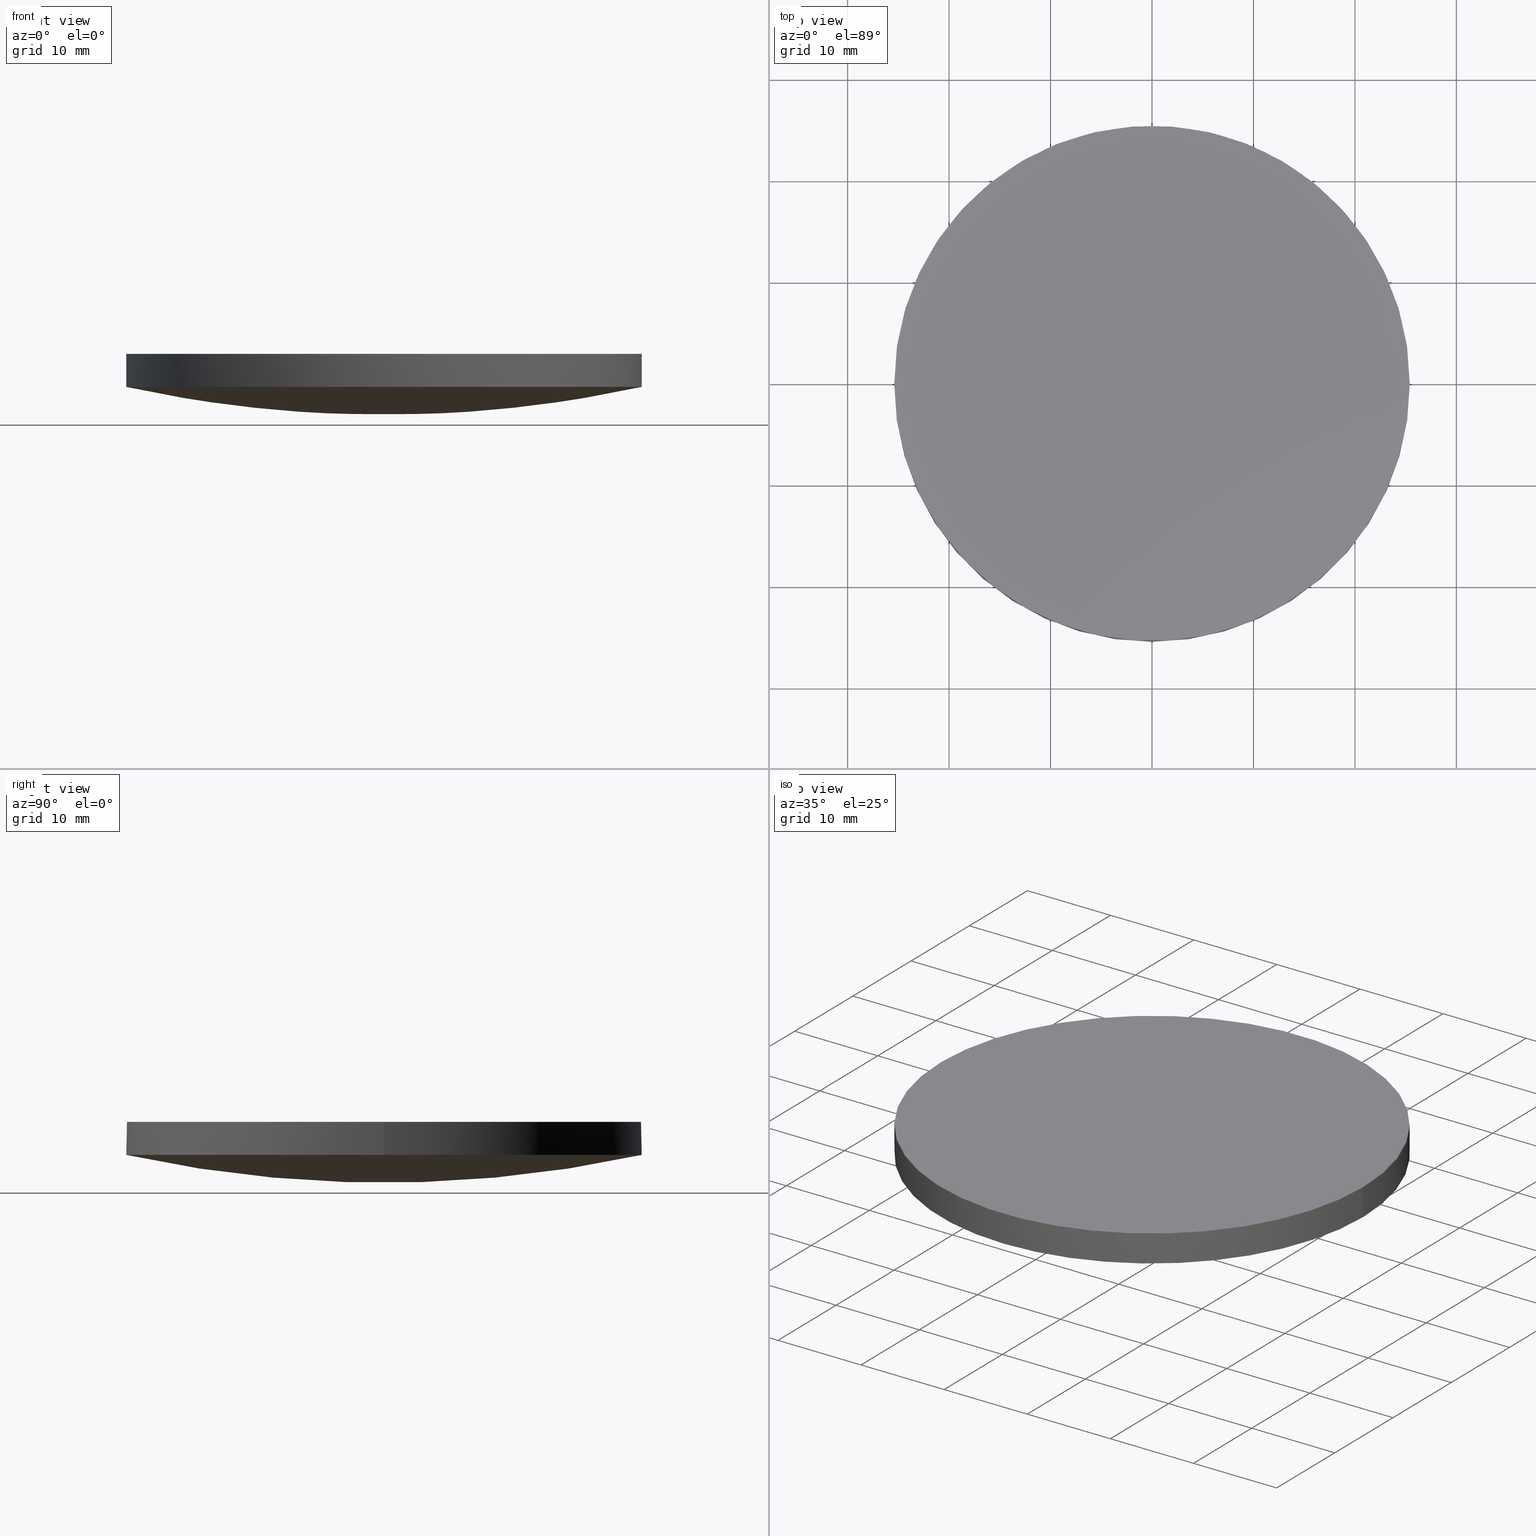
[diagram: canonical four-view strip — front | top / right | iso, engineering-drawing reading convention]
A machine part, canonical four-view strip (front | top / right | iso — engineering-drawing reading convention). The complete STEP part file that produces these views, byte-faithful:
ISO-10303-21;
HEADER;
FILE_DESCRIPTION (( 'STEP AP203' ),
    '1' );
FILE_NAME ('110-1517E UVFS pl-cx 50.8 F250.STEP',
    '2018-12-13T15:10:18',
    ( '' ),
    ( '' ),
    'SwSTEP 2.0',
    'SolidWorks 2017',
    '' );
FILE_SCHEMA (( 'CONFIG_CONTROL_DESIGN' ));
ENDSEC;

DATA;
#1 = EDGE_CURVE ( 'NONE', #216, #8, #36, .T. ) ;
#2 = CYLINDRICAL_SURFACE ( 'NONE', #87, 25.39999999999999900 ) ;
#3 = CARTESIAN_POINT ( 'NONE',  ( 9.992007221626412800E-016, 4.884981308350691100E-015, 2.742355090084500200 ) ) ;
#4 = AXIS2_PLACEMENT_3D ( 'NONE', #61, #170, #99 ) ;
#5 = CIRCLE ( 'NONE', #54, 25.39999999999999900 ) ;
#6 = DIRECTION ( 'NONE',  ( 0.0000000000000000000, 0.0000000000000000000, 1.000000000000000000 ) ) ;
#7 = APPROVAL_DATE_TIME ( #139, #172 ) ;
#8 = VERTEX_POINT ( 'NONE', #196 ) ;
#9 = CARTESIAN_POINT ( 'NONE',  ( -16.74556419753230300, -25.69999964640433300, 3.715086385571858800 ) ) ;
#10 = EDGE_CURVE ( 'NONE', #226, #216, #136, .T. ) ;
#11 = CARTESIAN_POINT ( 'NONE',  ( 25.75422041972872500, 8.703598526910687000, 1.846348701694524100 ) ) ;
#12 = CC_DESIGN_PERSON_AND_ORGANIZATION_ASSIGNMENT ( #204, #166, ( #199 ) ) ;
#13 = ORIENTED_EDGE ( 'NONE', *, *, #180, .F. ) ;
#14 = CC_DESIGN_APPROVAL ( #205, ( #23 ) ) ;
#15 = MECHANICAL_CONTEXT ( 'NONE', #93, 'mechanical' ) ;
#16 = DIRECTION ( 'NONE',  ( -0.0000000000000000000, -0.0000000000000000000, -1.000000000000000000 ) ) ;
#17 = DATE_AND_TIME ( #62, #116 ) ;
#18 = EDGE_CURVE ( 'NONE', #234, #57, #101, .T. ) ;
#19 = EDGE_LOOP ( 'NONE', ( #55, #97, #45 ) ) ;
#20 = APPROVAL_STATUS ( 'not_yet_approved' ) ;
#21 = ORIENTED_EDGE ( 'NONE', *, *, #220, .F. ) ;
#22 = PERSON_AND_ORGANIZATION ( #37, #83 ) ;
#23 = SECURITY_CLASSIFICATION ( '', '', #78 ) ;
#24 = DIRECTION ( 'NONE',  ( 1.000000000000000000, 0.0000000000000000000, 0.0000000000000000000 ) ) ;
#25 = DIRECTION ( 'NONE',  ( 1.000000000000000000, 0.0000000000000000000, -0.0000000000000000000 ) ) ;
#26 = PERSON_AND_ORGANIZATION ( #37, #83 ) ;
#27 = SHAPE_DEFINITION_REPRESENTATION ( #217, #143 ) ;
#28 = EDGE_CURVE ( 'NONE', #8, #216, #230, .T. ) ;
#29 = CARTESIAN_POINT ( 'NONE',  ( 24.94706102982440800, 25.69999964640436100, 5.518044764160708700 ) ) ;
#30 = CARTESIAN_POINT ( 'NONE',  ( 2.625693991564199000E-014, -8.703598526910649700, -0.9510645303030325100 ) ) ;
#31 = CC_DESIGN_PERSON_AND_ORGANIZATION_ASSIGNMENT ( #96, #113, ( #199 ) ) ;
#32 = CARTESIAN_POINT ( 'NONE',  ( 25.39999999999999900, 4.884981308350691100E-015, 2.742355090084500200 ) ) ;
#33 = CARTESIAN_POINT ( 'NONE',  ( 25.75422041972872800, -8.703598526910644400, 1.846348701694522600 ) ) ;
#34 = CARTESIAN_POINT ( 'NONE',  ( -25.39999999999999900, 7.995584178184967200E-015, 2.742355090084500200 ) ) ;
#35 = AXIS2_PLACEMENT_3D ( 'NONE', #185, #219, #100 ) ;
#36 = CIRCLE ( 'NONE', #4, 25.39999999999999900 ) ;
#37 = PERSON ( 'UNSPECIFIED', 'UNSPECIFIED', 'UNSPECIFIED', ('UNSPECIFIED'), ('UNSPECIFIED'), ('UNSPECIFIED') ) ;
#38 = PRODUCT_RELATED_PRODUCT_CATEGORY ( 'detail', '', ( #191 ) ) ;
#39 = PERSON_AND_ORGANIZATION ( #37, #83 ) ;
#40 = FACE_OUTER_BOUND ( 'NONE', #198, .T. ) ;
#41 = CC_DESIGN_DATE_AND_TIME_ASSIGNMENT ( #17, #178, ( #23 ) ) ;
#42 = AXIS2_PLACEMENT_3D ( 'NONE', #3, #81, #24 ) ;
#43 = CARTESIAN_POINT ( 'NONE',  ( -25.39999999999999900, 7.995584178184967200E-015, 2.742355090084500200 ) ) ;
#44 = PERSON_AND_ORGANIZATION ( #37, #83 ) ;
#45 = ORIENTED_EDGE ( 'NONE', *, *, #220, .T. ) ;
#46 = DIRECTION ( 'NONE',  ( 1.000000000000000000, 0.0000000000000000000, 0.0000000000000000000 ) ) ;
#47 = CARTESIAN_POINT ( 'NONE',  ( 8.669028249741140600, 8.703598526910683500, -0.9510645303030316200 ) ) ;
#48 = CARTESIAN_POINT ( 'NONE',  ( 17.28736506798853200, 8.703598526910685300, -0.01494419506242674000 ) ) ;
#49 = CARTESIAN_POINT ( 'NONE',  ( 8.397333458010448800, 25.69999964640436100, 2.808304865731413800 ) ) ;
#50 =( NAMED_UNIT ( * ) PLANE_ANGLE_UNIT ( ) SI_UNIT ( $, .RADIAN. ) );
#51 = APPROVAL_PERSON_ORGANIZATION ( #22, #172, #132 ) ;
#52 = APPLICATION_PROTOCOL_DEFINITION ( 'international standard', 'config_control_design', 1994, #93 ) ;
#53 = ORIENTED_EDGE ( 'NONE', *, *, #10, .F. ) ;
#54 = AXIS2_PLACEMENT_3D ( 'NONE', #159, #162, #140 ) ;
#55 = ORIENTED_EDGE ( 'NONE', *, *, #18, .T. ) ;
#56 = APPROVAL_PERSON_ORGANIZATION ( #39, #232, #90 ) ;
#57 = VERTEX_POINT ( 'NONE', #197 ) ;
#58 = ORIENTED_EDGE ( 'NONE', *, *, #1, .T. ) ;
#59 = AXIS2_PLACEMENT_3D ( 'NONE', #203, #84, #102 ) ;
#60 = DIRECTION ( 'NONE',  ( 0.0000000000000000000, 0.0000000000000000000, 1.000000000000000000 ) ) ;
#61 = CARTESIAN_POINT ( 'NONE',  ( 9.992007221626412800E-016, 4.884981308350691100E-015, 6.000000000000000000 ) ) ;
#62 = CALENDAR_DATE ( 2018, 13, 12 ) ;
#63 = CLOSED_SHELL ( 'NONE', ( #164, #211, #212, #129, #94 ) ) ;
#64 = CARTESIAN_POINT ( 'NONE',  ( 1.799039049072755500E-014, 25.69999964640435800, 2.808304865731414700 ) ) ;
#65 = CARTESIAN_POINT ( 'NONE',  ( -17.28736506798856400, 8.703598526910676400, -0.01494419506241220900 ) ) ;
#66 = DESIGN_CONTEXT ( 'detailed design', #192, 'design' ) ;
#67 = CARTESIAN_POINT ( 'NONE',  ( 9.992007221626412800E-016, 4.884981308350691100E-015, 2.742355090084500200 ) ) ;
#68 = CALENDAR_DATE ( 2018, 13, 12 ) ;
#69 = CARTESIAN_POINT ( 'NONE',  ( 0.0000000000000000000, -8.703598526910653300, -0.9510645303030277300 ) ) ;
#70 = CARTESIAN_POINT ( 'NONE',  ( -1.040834085586084300E-014, 25.69999964640435400, 2.808304865731418200 ) ) ;
#71 = CARTESIAN_POINT ( 'NONE',  ( 25.39999999999999900, 4.884981308350691100E-015, 2.742355090084500200 ) ) ;
#72 = CALENDAR_DATE ( 2018, 13, 12 ) ;
#73 = CYLINDRICAL_SURFACE ( 'NONE', #175, 25.39999999999999900 ) ;
#74 = PERSON_AND_ORGANIZATION_ROLE ( 'design_owner' ) ;
#75 =( BOUNDED_SURFACE ( )  B_SPLINE_SURFACE ( 3, 3, ( 
 ( #104, #9, #221, #155 ),
 ( #121, #138, #174, #69 ),
 ( #173, #65, #202, #209 ),
 ( #207, #109, #177, #70 ) ),
 .UNSPECIFIED., .F., .F., .T. ) 
 B_SPLINE_SURFACE_WITH_KNOTS ( ( 4, 4 ),
 ( 4, 4 ),
 ( 0.0000000000000000000, 1.000000000000000000 ),
 ( 0.0000000000000000000, 1.000000000000000000 ),
 .UNSPECIFIED. ) 
 GEOMETRIC_REPRESENTATION_ITEM ( )  RATIONAL_B_SPLINE_SURFACE ( (
 ( 1.000000000000000000, 0.9961017213591967200, 0.9961017213591967200, 1.000000000000000000),
 ( 0.9842671996317566800, 0.9804302518305889600, 0.9804302518305889600, 0.9842671996317566800),
 ( 0.9842671996317566800, 0.9804302518305889600, 0.9804302518305889600, 0.9842671996317566800),
 ( 1.000000000000000000, 0.9961017213591967200, 0.9961017213591967200, 1.000000000000000000) ) ) 
 REPRESENTATION_ITEM ( '' )  SURFACE ( )  );
#76 = CC_DESIGN_DATE_AND_TIME_ASSIGNMENT ( #79, #144, ( #227 ) ) ;
#77 = PERSON_AND_ORGANIZATION_ROLE ( 'classification_officer' ) ;
#78 = SECURITY_CLASSIFICATION_LEVEL ( 'unclassified' ) ;
#79 = DATE_AND_TIME ( #72, #148 ) ;
#80 = EDGE_LOOP ( 'NONE', ( #131, #167 ) ) ;
#81 = DIRECTION ( 'NONE',  ( -0.0000000000000000000, -0.0000000000000000000, -1.000000000000000000 ) ) ;
#82 = CARTESIAN_POINT ( 'NONE',  ( 0.0000000000000000000, 52.02000000000000300, 6.000000000000000000 ) ) ;
#83 = ORGANIZATION ( 'UNSPECIFIED', 'UNSPECIFIED', '' ) ;
#84 = DIRECTION ( 'NONE',  ( -0.0000000000000000000, -0.0000000000000000000, -1.000000000000000000 ) ) ;
#85 = EDGE_LOOP ( 'NONE', ( #154, #128, #186 ) ) ;
#86 = ORIENTED_EDGE ( 'NONE', *, *, #231, .F. ) ;
#87 = AXIS2_PLACEMENT_3D ( 'NONE', #118, #151, #46 ) ;
#88 = DIRECTION ( 'NONE',  ( 1.000000000000000000, 0.0000000000000000000, 0.0000000000000000000 ) ) ;
#89 = CARTESIAN_POINT ( 'NONE',  ( 2.842170943040400100E-014, 2.131628207280299900E-014, 119.0000000000000100 ) ) ;
#90 = APPROVAL_ROLE ( '' ) ;
#91 =( NAMED_UNIT ( * ) SI_UNIT ( $, .STERADIAN. ) SOLID_ANGLE_UNIT ( ) );
#92 = FACE_OUTER_BOUND ( 'NONE', #80, .T. ) ;
#93 = APPLICATION_CONTEXT ( 'configuration controlled 3d designs of mechanical parts and assemblies' ) ;
#94 = ADVANCED_FACE ( 'NONE', ( #92 ), #169, .T. ) ;
#95 = PERSON_AND_ORGANIZATION_ROLE ( 'creator' ) ;
#96 = PERSON_AND_ORGANIZATION ( #37, #83 ) ;
#97 = ORIENTED_EDGE ( 'NONE', *, *, #210, .T. ) ;
#98 = UNCERTAINTY_MEASURE_WITH_UNIT (LENGTH_MEASURE( 1.000000000000000100E-005 ), #224, 'distance_accuracy_value', 'NONE');
#99 = DIRECTION ( 'NONE',  ( 1.000000000000000000, 0.0000000000000000000, 0.0000000000000000000 ) ) ;
#100 = DIRECTION ( 'NONE',  ( 1.000000000000000000, 0.0000000000000000000, 0.0000000000000000000 ) ) ;
#101 = CIRCLE ( 'NONE', #42, 25.39999999999999900 ) ;
#102 = DIRECTION ( 'NONE',  ( 1.000000000000000000, 0.0000000000000000000, 0.0000000000000000000 ) ) ;
#103 = ORIENTED_EDGE ( 'NONE', *, *, #28, .T. ) ;
#104 = CARTESIAN_POINT ( 'NONE',  ( -24.94706102982444300, -25.69999964640433600, 5.518044764160734400 ) ) ;
#105 = CARTESIAN_POINT ( 'NONE',  ( 3.054174162706871200E-014, -25.69999964640432600, 2.808304865731414700 ) ) ;
#106 = CARTESIAN_POINT ( 'NONE',  ( 17.28736506798853200, -8.703598526910644400, -0.01494419506242804200 ) ) ;
#107 = CIRCLE ( 'NONE', #117, 25.39999999999999900 ) ;
#108 = CARTESIAN_POINT ( 'NONE',  ( 0.0000000000000000000, 0.0000000000000000000, 0.0000000000000000000 ) ) ;
#109 = CARTESIAN_POINT ( 'NONE',  ( -16.74556419753232100, 25.69999964640435100, 3.715086385571858300 ) ) ;
#110 = APPROVAL_DATE_TIME ( #195, #205 ) ;
#111 = VERTEX_POINT ( 'NONE', #152 ) ;
#112 = PERSON_AND_ORGANIZATION ( #37, #83 ) ;
#113 = PERSON_AND_ORGANIZATION_ROLE ( 'creator' ) ;
#114 = CC_DESIGN_APPROVAL ( #172, ( #199 ) ) ;
#115 = APPROVAL_DATE_TIME ( #161, #232 ) ;
#116 = LOCAL_TIME ( 17, 10, 18.00000000000000000, #225 ) ;
#117 = AXIS2_PLACEMENT_3D ( 'NONE', #229, #16, #228 ) ;
#118 = CARTESIAN_POINT ( 'NONE',  ( 9.992007221626412800E-016, 4.884981308350691100E-015, 2.742355090084500200 ) ) ;
#119 = ORIENTED_EDGE ( 'NONE', *, *, #18, .F. ) ;
#120 = CARTESIAN_POINT ( 'NONE',  ( 2.200628144233413800E-014, 8.703598526910681700, -0.9510645303030310600 ) ) ;
#121 = CARTESIAN_POINT ( 'NONE',  ( -25.75422041972877500, -8.703598526910662200, 1.846348701694550300 ) ) ;
#122 = AXIS2_PLACEMENT_3D ( 'NONE', #82, #60, #25 ) ;
#123 = DIRECTION ( 'NONE',  ( 1.000000000000000000, 0.0000000000000000000, 0.0000000000000000000 ) ) ;
#124 = CALENDAR_DATE ( 2018, 13, 12 ) ;
#125 = FACE_OUTER_BOUND ( 'NONE', #85, .T. ) ;
#126 = CC_DESIGN_PERSON_AND_ORGANIZATION_ASSIGNMENT ( #44, #74, ( #191 ) ) ;
#127 = APPLICATION_PROTOCOL_DEFINITION ( 'international standard', 'config_control_design', 1994, #192 ) ;
#128 = ORIENTED_EDGE ( 'NONE', *, *, #194, .T. ) ;
#129 = ADVANCED_FACE ( 'NONE', ( #213 ), #2, .T. ) ;
#130 =( GEOMETRIC_REPRESENTATION_CONTEXT ( 3 ) GLOBAL_UNCERTAINTY_ASSIGNED_CONTEXT ( ( #98 ) ) GLOBAL_UNIT_ASSIGNED_CONTEXT ( ( #224, #50, #91 ) ) REPRESENTATION_CONTEXT ( 'NONE', 'WORKASPACE' ) );
#131 = ORIENTED_EDGE ( 'NONE', *, *, #28, .F. ) ;
#132 = APPROVAL_ROLE ( '' ) ;
#133 = CC_DESIGN_PERSON_AND_ORGANIZATION_ASSIGNMENT ( #181, #77, ( #23 ) ) ;
#134 = ORIENTED_EDGE ( 'NONE', *, *, #10, .T. ) ;
#135 = COORDINATED_UNIVERSAL_TIME_OFFSET ( 2, 0, .AHEAD. ) ;
#136 = LINE ( 'NONE', #43, #141 ) ;
#137 = MANIFOLD_SOLID_BREP ( 'Imported1', #63 ) ;
#138 = CARTESIAN_POINT ( 'NONE',  ( -17.28736506798856000, -8.703598526910658600, -0.01494419506241329700 ) ) ;
#139 = DATE_AND_TIME ( #150, #233 ) ;
#140 = DIRECTION ( 'NONE',  ( 1.000000000000000000, 8.881784197001252300E-016, 0.0000000000000000000 ) ) ;
#141 = VECTOR ( 'NONE', #6, 1000.000000000000000 ) ;
#142 = CC_DESIGN_APPROVAL ( #232, ( #227 ) ) ;
#143 = ADVANCED_BREP_SHAPE_REPRESENTATION ( '110-1517E UVFS pl-cx 50.8 F250', ( #137, #168 ), #130 ) ;
#144 = DATE_TIME_ROLE ( 'creation_date' ) ;
#145 =( BOUNDED_SURFACE ( )  B_SPLINE_SURFACE ( 3, 3, ( 
 ( #105, #200, #156, #222 ),
 ( #30, #201, #106, #33 ),
 ( #120, #47, #48, #11 ),
 ( #64, #49, #189, #29 ) ),
 .UNSPECIFIED., .F., .F., .F. ) 
 B_SPLINE_SURFACE_WITH_KNOTS ( ( 4, 4 ),
 ( 4, 4 ),
 ( 0.0000000000000000000, 1.000000000000000000 ),
 ( 0.0000000000000000000, 1.000000000000000000 ),
 .UNSPECIFIED. ) 
 GEOMETRIC_REPRESENTATION_ITEM ( )  RATIONAL_B_SPLINE_SURFACE ( (
 ( 1.000000000000000000, 0.9961017213591968300, 0.9961017213591968300, 1.000000000000000000),
 ( 0.9842671996317566800, 0.9804302518305890700, 0.9804302518305890700, 0.9842671996317566800),
 ( 0.9842671996317566800, 0.9804302518305890700, 0.9804302518305890700, 0.9842671996317566800),
 ( 1.000000000000000000, 0.9961017213591968300, 0.9961017213591968300, 1.000000000000000000) ) ) 
 REPRESENTATION_ITEM ( '' )  SURFACE ( )  );
#146 = AXIS2_PLACEMENT_3D ( 'NONE', #89, #187, #223 ) ;
#147 = APPROVAL_ROLE ( '' ) ;
#148 = LOCAL_TIME ( 17, 10, 18.00000000000000000, #165 ) ;
#149 = ORIENTED_EDGE ( 'NONE', *, *, #194, .F. ) ;
#150 = CALENDAR_DATE ( 2018, 13, 12 ) ;
#151 = DIRECTION ( 'NONE',  ( 0.0000000000000000000, 0.0000000000000000000, 1.000000000000000000 ) ) ;
#152 = CARTESIAN_POINT ( 'NONE',  ( 1.806128859801101300E-014, 25.39999999999994900, 2.742355090084492200 ) ) ;
#153 = LOCAL_TIME ( 17, 10, 18.00000000000000000, #171 ) ;
#154 = ORIENTED_EDGE ( 'NONE', *, *, #210, .F. ) ;
#155 = CARTESIAN_POINT ( 'NONE',  ( 3.469446951953614200E-015, -25.69999964640432900, 2.808304865731420000 ) ) ;
#156 = CARTESIAN_POINT ( 'NONE',  ( 16.74556419753229600, -25.69999964640432600, 3.715086385571843200 ) ) ;
#157 = DIRECTION ( 'NONE',  ( 0.0000000000000000000, 0.0000000000000000000, 1.000000000000000000 ) ) ;
#158 = APPROVAL_PERSON_ORGANIZATION ( #26, #205, #147 ) ;
#159 = CARTESIAN_POINT ( 'NONE',  ( 9.992007221626412800E-016, 4.884981308350691100E-015, 2.742355090084500200 ) ) ;
#160 = CC_DESIGN_PERSON_AND_ORGANIZATION_ASSIGNMENT ( #112, #95, ( #227 ) ) ;
#161 = DATE_AND_TIME ( #124, #153 ) ;
#162 = DIRECTION ( 'NONE',  ( -0.0000000000000000000, -0.0000000000000000000, -1.000000000000000000 ) ) ;
#163 = CIRCLE ( 'NONE', #146, 119.0000000000000000 ) ;
#164 = ADVANCED_FACE ( 'NONE', ( #184 ), #145, .T. ) ;
#165 = COORDINATED_UNIVERSAL_TIME_OFFSET ( 2, 0, .AHEAD. ) ;
#166 = PERSON_AND_ORGANIZATION_ROLE ( 'design_supplier' ) ;
#167 = ORIENTED_EDGE ( 'NONE', *, *, #1, .F. ) ;
#168 = AXIS2_PLACEMENT_3D ( 'NONE', #108, #176, #123 ) ;
#169 = PLANE ( 'NONE',  #122 ) ;
#170 = DIRECTION ( 'NONE',  ( -0.0000000000000000000, -0.0000000000000000000, -1.000000000000000000 ) ) ;
#171 = COORDINATED_UNIVERSAL_TIME_OFFSET ( 2, 0, .AHEAD. ) ;
#172 = APPROVAL ( #235, 'UNSPECIFIED' ) ;
#173 = CARTESIAN_POINT ( 'NONE',  ( -25.75422041972878200, 8.703598526910672800, 1.846348701694551900 ) ) ;
#174 = CARTESIAN_POINT ( 'NONE',  ( -8.669028249741142400, -8.703598526910655100, -0.9510645303030257300 ) ) ;
#175 = AXIS2_PLACEMENT_3D ( 'NONE', #67, #190, #88 ) ;
#176 = DIRECTION ( 'NONE',  ( 0.0000000000000000000, 0.0000000000000000000, 1.000000000000000000 ) ) ;
#177 = CARTESIAN_POINT ( 'NONE',  ( -8.397333458010464800, 25.69999964640435100, 2.808304865731420500 ) ) ;
#178 = DATE_TIME_ROLE ( 'classification_date' ) ;
#179 = LINE ( 'NONE', #32, #215 ) ;
#180 = EDGE_CURVE ( 'NONE', #234, #8, #179, .T. ) ;
#181 = PERSON_AND_ORGANIZATION ( #37, #83 ) ;
#182 = EDGE_LOOP ( 'NONE', ( #53, #149, #119, #188, #103 ) ) ;
#183 = APPROVAL_STATUS ( 'not_yet_approved' ) ;
#184 = FACE_OUTER_BOUND ( 'NONE', #19, .T. ) ;
#185 = CARTESIAN_POINT ( 'NONE',  ( 9.992007221626412800E-016, 4.884981308350691100E-015, 6.000000000000000000 ) ) ;
#186 = ORIENTED_EDGE ( 'NONE', *, *, #231, .T. ) ;
#187 = DIRECTION ( 'NONE',  ( 1.000000000000000000, 2.441897141834629800E-016, -3.576540790375509800E-017 ) ) ;
#188 = ORIENTED_EDGE ( 'NONE', *, *, #180, .T. ) ;
#189 = CARTESIAN_POINT ( 'NONE',  ( 16.74556419753228900, 25.69999964640436100, 3.715086385571844600 ) ) ;
#190 = DIRECTION ( 'NONE',  ( 0.0000000000000000000, 0.0000000000000000000, 1.000000000000000000 ) ) ;
#191 = PRODUCT ( '110-1517E UVFS pl-cx 50.8 F250', '110-1517E UVFS pl-cx 50.8 F250', '', ( #15 ) ) ;
#192 = APPLICATION_CONTEXT ( 'configuration controlled 3d designs of mechanical parts and assemblies' ) ;
#193 = CIRCLE ( 'NONE', #59, 25.39999999999999900 ) ;
#194 = EDGE_CURVE ( 'NONE', #57, #226, #193, .T. ) ;
#195 = DATE_AND_TIME ( #68, #208 ) ;
#196 = CARTESIAN_POINT ( 'NONE',  ( 25.39999999999999900, 4.884981308350691100E-015, 6.000000000000000000 ) ) ;
#197 = CARTESIAN_POINT ( 'NONE',  ( 3.046612607853090000E-014, -25.39999999999992400, 2.742355090084498800 ) ) ;
#198 = EDGE_LOOP ( 'NONE', ( #86, #134, #58, #13, #21 ) ) ;
#199 = PRODUCT_DEFINITION_FORMATION_WITH_SPECIFIED_SOURCE ( 'ANY', '', #191, .NOT_KNOWN. ) ;
#200 = CARTESIAN_POINT ( 'NONE',  ( 8.397333458010461300, -25.69999964640432600, 2.808304865731413800 ) ) ;
#201 = CARTESIAN_POINT ( 'NONE',  ( 8.669028249741145900, -8.703598526910646200, -0.9510645303030329500 ) ) ;
#202 = CARTESIAN_POINT ( 'NONE',  ( -8.669028249741145900, 8.703598526910679900, -0.9510645303030247400 ) ) ;
#203 = CARTESIAN_POINT ( 'NONE',  ( 9.992007221626412800E-016, 4.884981308350691100E-015, 2.742355090084500200 ) ) ;
#204 = PERSON_AND_ORGANIZATION ( #37, #83 ) ;
#205 = APPROVAL ( #183, 'UNSPECIFIED' ) ;
#206 = CARTESIAN_POINT ( 'NONE',  ( -25.39999999999999900, 7.995584178184967200E-015, 6.000000000000000000 ) ) ;
#207 = CARTESIAN_POINT ( 'NONE',  ( -24.94706102982446400, 25.69999964640434700, 5.518044764160734400 ) ) ;
#208 = LOCAL_TIME ( 17, 10, 18.00000000000000000, #135 ) ;
#209 = CARTESIAN_POINT ( 'NONE',  ( -3.469446951953613800E-015, 8.703598526910679900, -0.9510645303030269600 ) ) ;
#210 = EDGE_CURVE ( 'NONE', #57, #111, #163, .T. ) ;
#211 = ADVANCED_FACE ( 'NONE', ( #40 ), #73, .T. ) ;
#212 = ADVANCED_FACE ( 'NONE', ( #125 ), #75, .T. ) ;
#213 = FACE_OUTER_BOUND ( 'NONE', #182, .T. ) ;
#214 = CC_DESIGN_SECURITY_CLASSIFICATION ( #23, ( #199 ) ) ;
#215 = VECTOR ( 'NONE', #157, 1000.000000000000000 ) ;
#216 = VERTEX_POINT ( 'NONE', #206 ) ;
#217 = PRODUCT_DEFINITION_SHAPE ( 'NONE', 'NONE',  #227 ) ;
#218 = COORDINATED_UNIVERSAL_TIME_OFFSET ( 2, 0, .AHEAD. ) ;
#219 = DIRECTION ( 'NONE',  ( -0.0000000000000000000, -0.0000000000000000000, -1.000000000000000000 ) ) ;
#220 = EDGE_CURVE ( 'NONE', #111, #234, #5, .T. ) ;
#221 = CARTESIAN_POINT ( 'NONE',  ( -8.397333458010448800, -25.69999964640433300, 2.808304865731422200 ) ) ;
#222 = CARTESIAN_POINT ( 'NONE',  ( 24.94706102982441500, -25.69999964640432200, 5.518044764160706900 ) ) ;
#223 = DIRECTION ( 'NONE',  ( 2.441897141834630300E-016, -1.000000000000000000, -4.664802624475447800E-016 ) ) ;
#224 =( LENGTH_UNIT ( ) NAMED_UNIT ( * ) SI_UNIT ( .MILLI., .METRE. ) );
#225 = COORDINATED_UNIVERSAL_TIME_OFFSET ( 2, 0, .AHEAD. ) ;
#226 = VERTEX_POINT ( 'NONE', #34 ) ;
#227 = PRODUCT_DEFINITION ( 'UNKNOWN', '', #199, #66 ) ;
#228 = DIRECTION ( 'NONE',  ( 1.000000000000000000, 0.0000000000000000000, 0.0000000000000000000 ) ) ;
#229 = CARTESIAN_POINT ( 'NONE',  ( 9.992007221626412800E-016, 4.884981308350691100E-015, 2.742355090084500200 ) ) ;
#230 = CIRCLE ( 'NONE', #35, 25.39999999999999900 ) ;
#231 = EDGE_CURVE ( 'NONE', #226, #111, #107, .T. ) ;
#232 = APPROVAL ( #20, 'UNSPECIFIED' ) ;
#233 = LOCAL_TIME ( 17, 10, 18.00000000000000000, #218 ) ;
#234 = VERTEX_POINT ( 'NONE', #71 ) ;
#235 = APPROVAL_STATUS ( 'not_yet_approved' ) ;
ENDSEC;
END-ISO-10303-21;
